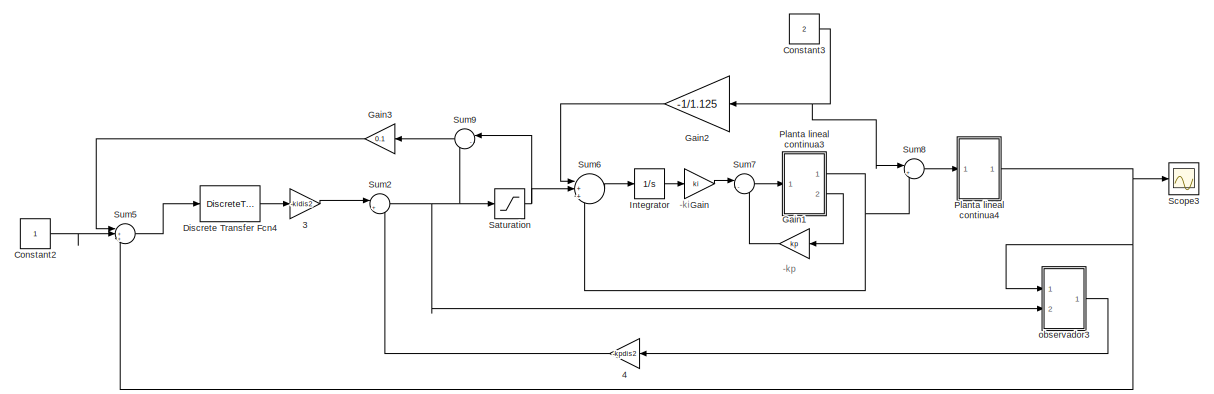
[diagram: root canvas - part 1/7, top center region]
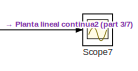
[diagram: root canvas - part 2/7, middle right region]
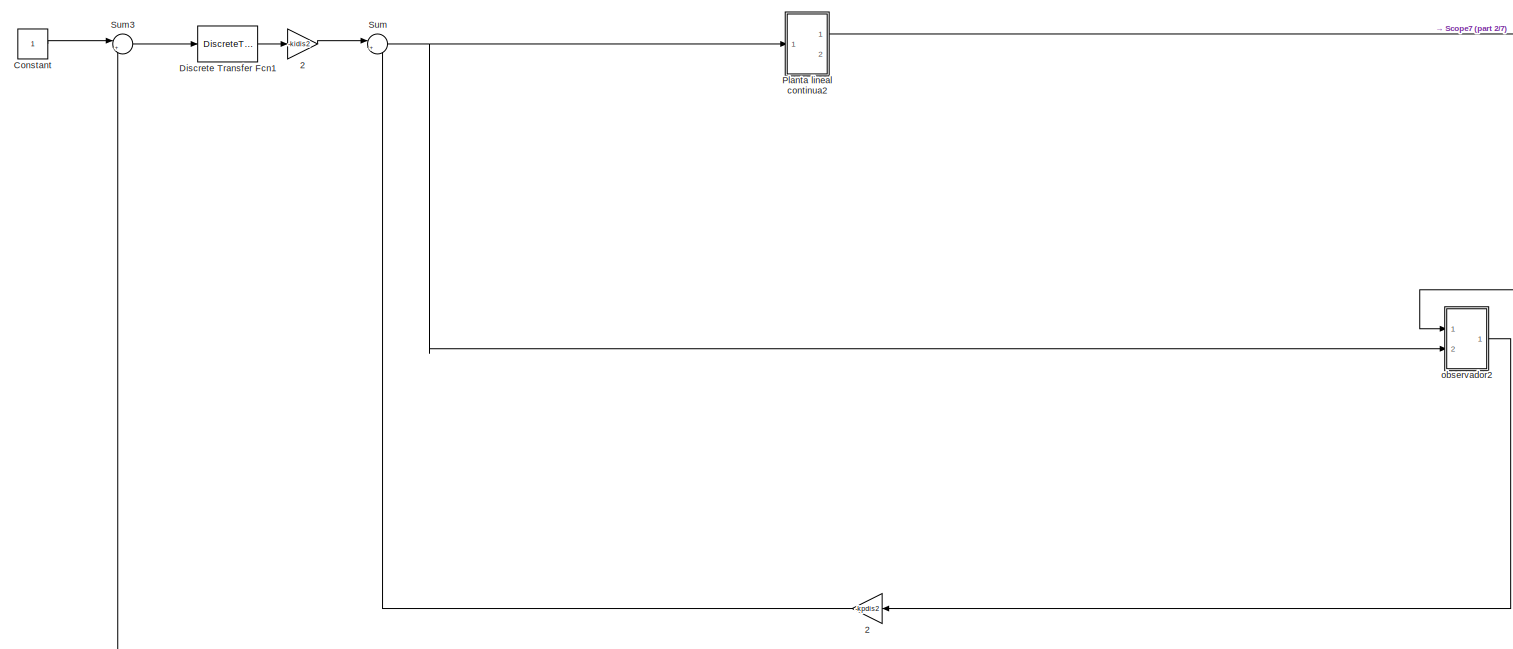
[diagram: root canvas - part 3/7, middle left region]
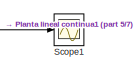
[diagram: root canvas - part 4/7, bottom right region]
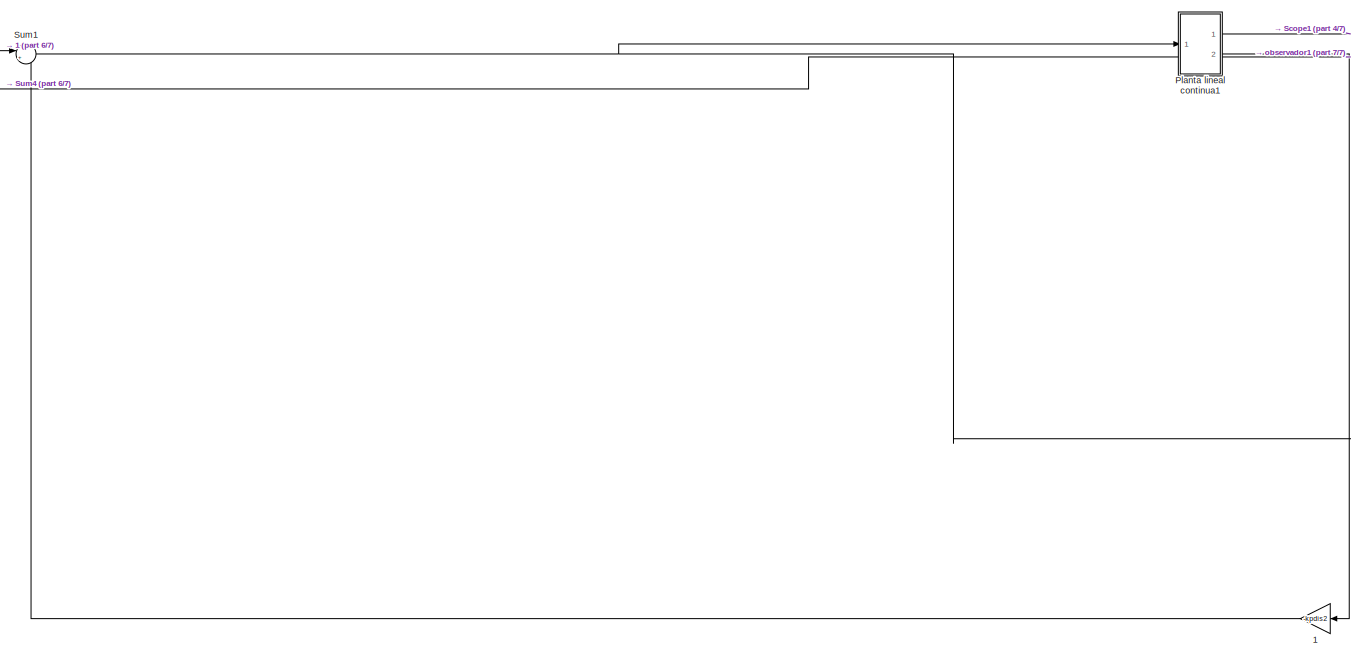
[diagram: root canvas - part 5/7, bottom center region]
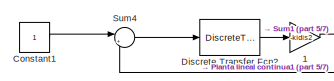
[diagram: root canvas - part 6/7, bottom left region]
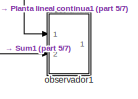
[diagram: root canvas - part 7/7, bottom right region]
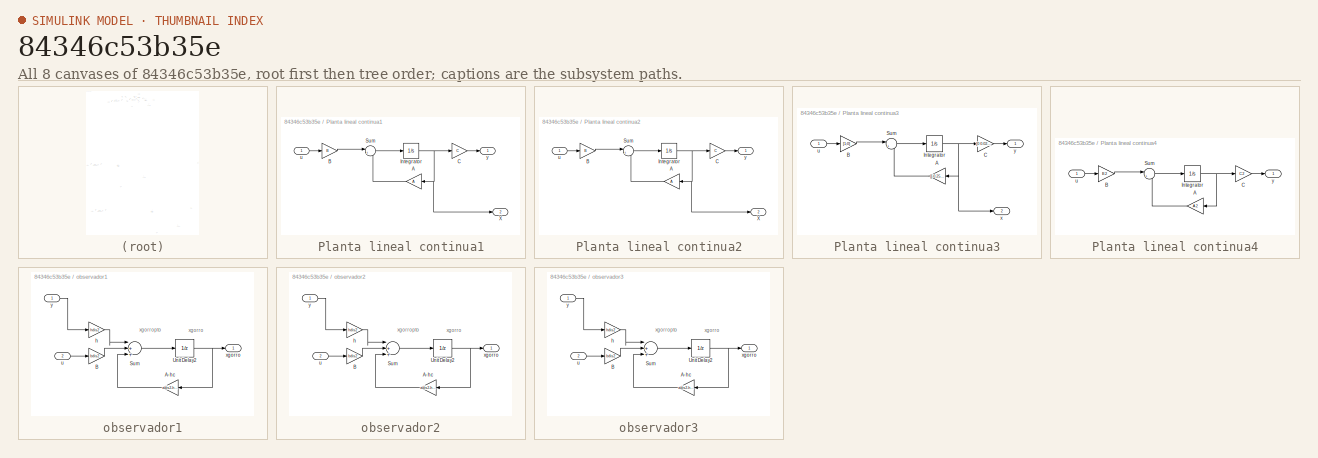
[diagram: thumbnail index - all 8 canvases of the model, root first then tree order]
MODEL slx_84346c53b35e
KIND model
CONFIG AbsTol = auto
CONFIG EnableMultiTasking = off
CONFIG FixedStep = auto
CONFIG MaxStep = auto
CONFIG MinStep = auto
CONFIG RelTol = 1e-3
CONFIG SampleTimeConstraint = Unconstrained
CONFIG Solver = VariableStepAuto
CONFIG SolverName = VariableStepAuto
CONFIG StartTime = 0.0
CONFIG StopTime = 600
BLOCK [Gain]  1
  Gain = -kidis2
  Multiplication = Matrix(K*u) (u vector)
  OutDataTypeStr = Inherit: Inherit via internal rule
  ParamDataTypeStr = Inherit: Inherit via internal rule
  SampleTime = tm2
  SaturateOnIntegerOverflow = off
BLOCK [Gain]  2
  Gain = -kidis2
  Multiplication = Matrix(K*u) (u vector)
  OutDataTypeStr = Inherit: Inherit via internal rule
  ParamDataTypeStr = Inherit: Inherit via internal rule
  SampleTime = tm2
  SaturateOnIntegerOverflow = off
BLOCK [Gain]  3
  Gain = -kidis2
  Multiplication = Matrix(K*u) (u vector)
  OutDataTypeStr = Inherit: Inherit via internal rule
  ParamDataTypeStr = Inherit: Inherit via internal rule
  SampleTime = tm2
  SaturateOnIntegerOverflow = off
BLOCK [Gain]  4
  Gain = -kpdis2
  Multiplication = Matrix(K*u) (u vector)
  OutDataTypeStr = Inherit: Inherit via internal rule
  ParamDataTypeStr = Inherit: Inherit via internal rule
  SampleTime = tm2
  SaturateOnIntegerOverflow = off
BLOCK [Constant] Constant
BLOCK [Constant] Constant1
BLOCK [Constant] Constant2
BLOCK [Constant] Constant3
  Value = 2
BLOCK [DiscreteTransferFcn] Discrete Transfer Fcn1
  Denominator = [1 -1]
  InputPortMap = u0
  Numerator = [1 0]
  Ports = [1, 1]
  SampleTime = tm2
  a0EqualsOne = on
BLOCK [DiscreteTransferFcn] Discrete Transfer Fcn2
  Denominator = [1 -1]
  InputPortMap = u0
  Numerator = [1 0]
  Ports = [1, 1]
  SampleTime = tm2
  a0EqualsOne = on
BLOCK [DiscreteTransferFcn] Discrete Transfer Fcn4
  Denominator = [1 -1]
  InputPortMap = u0
  Numerator = [1 0]
  Ports = [1, 1]
  SampleTime = tm2
  a0EqualsOne = on
BLOCK [Gain] Gain
  Gain = ki
  Multiplication = Matrix(K*u) (u vector)
  OutDataTypeStr = Inherit: Inherit via internal rule
  ParamDataTypeStr = Inherit: Inherit via internal rule
  SaturateOnIntegerOverflow = off
BLOCK [Gain] Gain1
  Gain = kp
  Multiplication = Matrix(K*u) (u vector)
  OutDataTypeStr = Inherit: Inherit via internal rule
  ParamDataTypeStr = Inherit: Inherit via internal rule
  SaturateOnIntegerOverflow = off
BLOCK [Gain] Gain2
  Gain = -1/1.125
  OutDataTypeStr = Inherit: Inherit via internal rule
  ParamDataTypeStr = Inherit: Inherit via internal rule
  SaturateOnIntegerOverflow = off
BLOCK [Gain] Gain3
  Gain = 0.1
  Multiplication = Matrix(K*u) (u vector)
  OutDataTypeStr = Inherit: Inherit via internal rule
  ParamDataTypeStr = Inherit: Inherit via internal rule
  SaturateOnIntegerOverflow = off
BLOCK [Integrator] Integrator
  Ports = [1, 1]
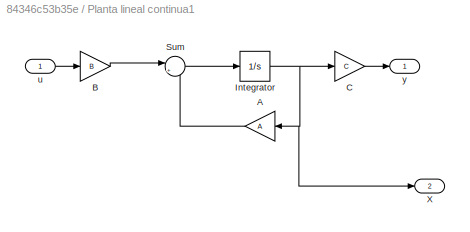
BLOCK [SubSystem] Planta lineal continua1
  Ports = [1, 2]
  RequestExecContextInheritance = off
BLOCK [Gain] Planta lineal continua1/A
  Gain = A
  Multiplication = Matrix(K*u) (u vector)
  OutDataTypeStr = Inherit: Inherit via internal rule
  ParamDataTypeStr = Inherit: Inherit via internal rule
  SaturateOnIntegerOverflow = off
BLOCK [Gain] Planta lineal continua1/B
  Gain = B
  Multiplication = Matrix(K*u) (u vector)
  OutDataTypeStr = Inherit: Inherit via internal rule
  ParamDataTypeStr = Inherit: Inherit via internal rule
  SaturateOnIntegerOverflow = off
BLOCK [Gain] Planta lineal continua1/C
  Gain = C
  Multiplication = Matrix(K*u) (u vector)
  OutDataTypeStr = Inherit: Inherit via internal rule
  ParamDataTypeStr = Inherit: Inherit via internal rule
  SaturateOnIntegerOverflow = off
BLOCK [Integrator] Planta lineal continua1/Integrator
  Ports = [1, 1]
BLOCK [Sum] Planta lineal continua1/Sum
  IconShape = round
  InputSameDT = off
  Inputs = |++
  OutDataTypeStr = Inherit: Inherit via internal rule
  Ports = [2, 1]
  SaturateOnIntegerOverflow = off
BLOCK [Outport] Planta lineal continua1/X 
  IconDisplay = Port number
  Port = 2
BLOCK [Inport] Planta lineal continua1/u
  IconDisplay = Port number
BLOCK [Outport] Planta lineal continua1/y
  IconDisplay = Port number
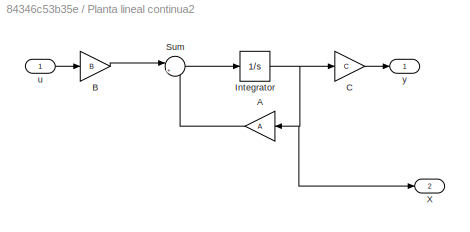
BLOCK [SubSystem] Planta lineal continua2
  Ports = [1, 2]
  RequestExecContextInheritance = off
BLOCK [Gain] Planta lineal continua2/A
  Gain = A
  Multiplication = Matrix(K*u) (u vector)
  OutDataTypeStr = Inherit: Inherit via internal rule
  ParamDataTypeStr = Inherit: Inherit via internal rule
  SaturateOnIntegerOverflow = off
BLOCK [Gain] Planta lineal continua2/B
  Gain = B
  Multiplication = Matrix(K*u) (u vector)
  OutDataTypeStr = Inherit: Inherit via internal rule
  ParamDataTypeStr = Inherit: Inherit via internal rule
  SaturateOnIntegerOverflow = off
BLOCK [Gain] Planta lineal continua2/C
  Gain = C
  Multiplication = Matrix(K*u) (u vector)
  OutDataTypeStr = Inherit: Inherit via internal rule
  ParamDataTypeStr = Inherit: Inherit via internal rule
  SaturateOnIntegerOverflow = off
BLOCK [Integrator] Planta lineal continua2/Integrator
  Ports = [1, 1]
BLOCK [Sum] Planta lineal continua2/Sum
  IconShape = round
  InputSameDT = off
  Inputs = |++
  OutDataTypeStr = Inherit: Inherit via internal rule
  Ports = [2, 1]
  SaturateOnIntegerOverflow = off
BLOCK [Outport] Planta lineal continua2/X 
  IconDisplay = Port number
  Port = 2
BLOCK [Inport] Planta lineal continua2/u
  IconDisplay = Port number
BLOCK [Outport] Planta lineal continua2/y
  IconDisplay = Port number
BLOCK [SubSystem] Planta lineal continua3
  Ports = [1, 2]
  RequestExecContextInheritance = off
BLOCK [Gain] Planta lineal continua3/A
  Gain = [[-0.25,-0.025];[1 0]]
  Multiplication = Matrix(K*u) (u vector)
  OutDataTypeStr = Inherit: Inherit via internal rule
  ParamDataTypeStr = Inherit: Inherit via internal rule
  SaturateOnIntegerOverflow = off
BLOCK [Gain] Planta lineal continua3/B
  Gain = [1;0]
  Multiplication = Matrix(K*u) (u vector)
  OutDataTypeStr = Inherit: Inherit via internal rule
  ParamDataTypeStr = Inherit: Inherit via internal rule
  SaturateOnIntegerOverflow = off
BLOCK [Gain] Planta lineal continua3/C
  Gain = [0 0.025]
  Multiplication = Matrix(K*u) (u vector)
  OutDataTypeStr = Inherit: Inherit via internal rule
  ParamDataTypeStr = Inherit: Inherit via internal rule
  SaturateOnIntegerOverflow = off
BLOCK [Integrator] Planta lineal continua3/Integrator
  Ports = [1, 1]
BLOCK [Sum] Planta lineal continua3/Sum
  IconShape = round
  InputSameDT = off
  Inputs = |++
  OutDataTypeStr = Inherit: Inherit via internal rule
  Ports = [2, 1]
  SaturateOnIntegerOverflow = off
BLOCK [Inport] Planta lineal continua3/u
  IconDisplay = Port number
BLOCK [Outport] Planta lineal continua3/x
  IconDisplay = Port number
  Port = 2
BLOCK [Outport] Planta lineal continua3/y
  IconDisplay = Port number
BLOCK [SubSystem] Planta lineal continua4
  Ports = [1, 1]
  RequestExecContextInheritance = off
BLOCK [Gain] Planta lineal continua4/A
  Gain = A2
  Multiplication = Matrix(K*u) (u vector)
  OutDataTypeStr = Inherit: Inherit via internal rule
  ParamDataTypeStr = Inherit: Inherit via internal rule
  SaturateOnIntegerOverflow = off
BLOCK [Gain] Planta lineal continua4/B
  Gain = B2
  Multiplication = Matrix(K*u) (u vector)
  OutDataTypeStr = Inherit: Inherit via internal rule
  ParamDataTypeStr = Inherit: Inherit via internal rule
  SaturateOnIntegerOverflow = off
BLOCK [Gain] Planta lineal continua4/C
  Gain = C2
  Multiplication = Matrix(K*u) (u vector)
  OutDataTypeStr = Inherit: Inherit via internal rule
  ParamDataTypeStr = Inherit: Inherit via internal rule
  SaturateOnIntegerOverflow = off
BLOCK [Integrator] Planta lineal continua4/Integrator
  Ports = [1, 1]
BLOCK [Sum] Planta lineal continua4/Sum
  IconShape = round
  InputSameDT = off
  Inputs = |++
  OutDataTypeStr = Inherit: Inherit via internal rule
  Ports = [2, 1]
  SaturateOnIntegerOverflow = off
BLOCK [Inport] Planta lineal continua4/u
  IconDisplay = Port number
BLOCK [Outport] Planta lineal continua4/y
  IconDisplay = Port number
BLOCK [Saturate] Saturation
  InputPortMap = u0
  LowerLimit = -5
  Ports = [1, 1]
  UpperLimit = 5
  ZeroCross = off
BLOCK [Scope] Scope1
  Floating = off
  NumInputPorts = 1
  Ports = [1]
  ScopeSpecificationString = Simulink.scopes.TimeScopeBlockCfg('CurrentConfiguration', extmgr.ConfigurationSet(extmgr.Configuration('Core','General UI',true),extmgr.Configuration('Core','Source UI',true),extmgr.Configuration('Sources','WiredSimulink',true,'DataLoggingVariableName','ScopeData1'),extmgr.Configuration('Visuals','Time Domain',true,'SerializedDisplays',{struct('MinYLimReal','-0.13407','MaxYLimReal','1.20667','YLab...<+1814ch>
BLOCK [Scope] Scope3
  Floating = off
  NumInputPorts = 1
  Ports = [1]
  ScopeSpecificationString = Simulink.scopes.TimeScopeBlockCfg('CurrentConfiguration', extmgr.ConfigurationSet(extmgr.Configuration('Core','General UI',true),extmgr.Configuration('Core','Source UI',true),extmgr.Configuration('Sources','WiredSimulink',true,'DataLoggingVariableName','ScopeData3'),extmgr.Configuration('Visuals','Time Domain',true,'SerializedDisplays',{struct('MinYLimReal','-0.15604','MaxYLimReal','1.40432','YLab...<+1485ch>
BLOCK [Scope] Scope7
  Floating = off
  NumInputPorts = 1
  Ports = [1]
  ScopeSpecificationString = Simulink.scopes.TimeScopeBlockCfg('CurrentConfiguration', extmgr.ConfigurationSet(extmgr.Configuration('Core','General UI',true),extmgr.Configuration('Core','Source UI',true),extmgr.Configuration('Sources','WiredSimulink',true),extmgr.Configuration('Visuals','Time Domain',true,'SerializedDisplays',{struct('MinYLimReal','-0.1234','MaxYLimReal','1.11059','YLabelReal','','MinYLimMag','0.00000','MaxYL...<+1446ch>
BLOCK [Sum] Sum
  IconShape = round
  InputSameDT = off
  Inputs = |++
  OutDataTypeStr = Inherit: Inherit via internal rule
  Ports = [2, 1]
  SaturateOnIntegerOverflow = off
BLOCK [Sum] Sum1
  IconShape = round
  InputSameDT = off
  Inputs = |++
  OutDataTypeStr = Inherit: Inherit via internal rule
  Ports = [2, 1]
  SaturateOnIntegerOverflow = off
BLOCK [Sum] Sum2
  IconShape = round
  InputSameDT = off
  Inputs = |++
  OutDataTypeStr = Inherit: Inherit via internal rule
  Ports = [2, 1]
  SaturateOnIntegerOverflow = off
BLOCK [Sum] Sum3
  IconShape = round
  InputSameDT = off
  Inputs = |+-
  OutDataTypeStr = Inherit: Inherit via internal rule
  Ports = [2, 1]
  SaturateOnIntegerOverflow = off
BLOCK [Sum] Sum4
  IconShape = round
  InputSameDT = off
  Inputs = |+-
  OutDataTypeStr = Inherit: Inherit via internal rule
  Ports = [2, 1]
  SaturateOnIntegerOverflow = off
BLOCK [Sum] Sum5
  IconShape = round
  InputSameDT = off
  Inputs = |++-
  OutDataTypeStr = Inherit: Inherit via internal rule
  Ports = [3, 1]
  SaturateOnIntegerOverflow = off
BLOCK [Sum] Sum6
  IconShape = round
  InputSameDT = off
  Inputs = |++-
  OutDataTypeStr = Inherit: Inherit via internal rule
  Ports = [3, 1]
  SaturateOnIntegerOverflow = off
BLOCK [Sum] Sum7
  IconShape = round
  InputSameDT = off
  Inputs = |--
  OutDataTypeStr = Inherit: Inherit via internal rule
  Ports = [2, 1]
  SaturateOnIntegerOverflow = off
BLOCK [Sum] Sum8
  IconShape = round
  InputSameDT = off
  Inputs = |++
  OutDataTypeStr = Inherit: Inherit via internal rule
  Ports = [2, 1]
  SaturateOnIntegerOverflow = off
BLOCK [Sum] Sum9
  IconShape = round
  InputSameDT = off
  Inputs = |-+
  OutDataTypeStr = Inherit: Inherit via internal rule
  Ports = [2, 1]
  SaturateOnIntegerOverflow = off
BLOCK [SubSystem] observador1
  Ports = [2, 1]
  RequestExecContextInheritance = off
BLOCK [Gain] observador1/A-hc
  Gain = adis2-hdis2*cdis2
  Multiplication = Matrix(K*u) (u vector)
  OutDataTypeStr = Inherit: Inherit via internal rule
  ParamDataTypeStr = Inherit: Inherit via internal rule
  SaturateOnIntegerOverflow = off
BLOCK [Gain] observador1/B
  Gain = bdis2
  Multiplication = Matrix(K*u) (u vector)
  OutDataTypeStr = Inherit: Inherit via internal rule
  ParamDataTypeStr = Inherit: Inherit via internal rule
  SaturateOnIntegerOverflow = off
BLOCK [Sum] observador1/Sum
  InputSameDT = off
  Inputs = |+++
  OutDataTypeStr = Inherit: Inherit via internal rule
  Ports = [3, 1]
  SaturateOnIntegerOverflow = off
BLOCK [UnitDelay] observador1/Unit Delay2
  HasFrameUpgradeWarning = on
  SampleTime = tm2
BLOCK [Gain] observador1/h
  Gain = hdis2
  Multiplication = Matrix(K*u) (u vector)
  OutDataTypeStr = Inherit: Inherit via internal rule
  ParamDataTypeStr = Inherit: Inherit via internal rule
  SaturateOnIntegerOverflow = off
BLOCK [Inport] observador1/u
  IconDisplay = Port number
  Port = 2
BLOCK [Outport] observador1/xgorro
  IconDisplay = Port number
BLOCK [Inport] observador1/y
  IconDisplay = Port number
BLOCK [SubSystem] observador2
  Ports = [2, 1]
  RequestExecContextInheritance = off
BLOCK [Gain] observador2/A-hc
  Gain = adis2-hdis2*cdis2
  Multiplication = Matrix(K*u) (u vector)
  OutDataTypeStr = Inherit: Inherit via internal rule
  ParamDataTypeStr = Inherit: Inherit via internal rule
  SaturateOnIntegerOverflow = off
BLOCK [Gain] observador2/B
  Gain = bdis2
  Multiplication = Matrix(K*u) (u vector)
  OutDataTypeStr = Inherit: Inherit via internal rule
  ParamDataTypeStr = Inherit: Inherit via internal rule
  SaturateOnIntegerOverflow = off
BLOCK [Sum] observador2/Sum
  InputSameDT = off
  Inputs = |+++
  OutDataTypeStr = Inherit: Inherit via internal rule
  Ports = [3, 1]
  SaturateOnIntegerOverflow = off
BLOCK [UnitDelay] observador2/Unit Delay2
  HasFrameUpgradeWarning = on
  SampleTime = tm2
BLOCK [Gain] observador2/h
  Gain = hdis2
  Multiplication = Matrix(K*u) (u vector)
  OutDataTypeStr = Inherit: Inherit via internal rule
  ParamDataTypeStr = Inherit: Inherit via internal rule
  SaturateOnIntegerOverflow = off
BLOCK [Inport] observador2/u
  IconDisplay = Port number
  Port = 2
BLOCK [Outport] observador2/xgorro
  IconDisplay = Port number
BLOCK [Inport] observador2/y
  IconDisplay = Port number
BLOCK [SubSystem] observador3
  Ports = [2, 1]
  RequestExecContextInheritance = off
BLOCK [Gain] observador3/A-hc
  Gain = adis2-hdis2*cdis2
  Multiplication = Matrix(K*u) (u vector)
  OutDataTypeStr = Inherit: Inherit via internal rule
  ParamDataTypeStr = Inherit: Inherit via internal rule
  SaturateOnIntegerOverflow = off
BLOCK [Gain] observador3/B
  Gain = bdis2
  Multiplication = Matrix(K*u) (u vector)
  OutDataTypeStr = Inherit: Inherit via internal rule
  ParamDataTypeStr = Inherit: Inherit via internal rule
  SaturateOnIntegerOverflow = off
BLOCK [Sum] observador3/Sum
  InputSameDT = off
  Inputs = |+++
  OutDataTypeStr = Inherit: Inherit via internal rule
  Ports = [3, 1]
  SaturateOnIntegerOverflow = off
BLOCK [UnitDelay] observador3/Unit Delay2
  HasFrameUpgradeWarning = on
  SampleTime = tm2
BLOCK [Gain] observador3/h
  Gain = hdis2
  Multiplication = Matrix(K*u) (u vector)
  OutDataTypeStr = Inherit: Inherit via internal rule
  ParamDataTypeStr = Inherit: Inherit via internal rule
  SaturateOnIntegerOverflow = off
BLOCK [Inport] observador3/u
  IconDisplay = Port number
  Port = 2
BLOCK [Outport] observador3/xgorro
  IconDisplay = Port number
BLOCK [Inport] observador3/y
  IconDisplay = Port number
ANNOTATION (root): -ki
ANNOTATION (root): -kp
ANNOTATION observador1: xgorro
ANNOTATION observador1: xgorropto
ANNOTATION observador2: xgorro
ANNOTATION observador2: xgorropto
ANNOTATION observador3: xgorro
ANNOTATION observador3: xgorropto
NET  1:1 -> Sum1:1, Sum1:2
NET  2:1 -> Sum:1, Sum:2
LINE  3:1 -> Sum2:1
LINE  4:1 -> Sum2:2
LINE Constant1:1 -> Sum4:1
LINE Constant2:1 -> Sum5:2
NET Constant3:1 -> Gain2:1, Sum8:1
LINE Constant:1 -> Sum3:1
LINE Discrete Transfer Fcn1:1 ->  2:1
LINE Discrete Transfer Fcn2:1 ->  1:1
LINE Discrete Transfer Fcn4:1 ->  3:1
LINE Gain1:1 -> Sum7:2
LINE Gain2:1 -> Sum6:1
LINE Gain3:1 -> Sum5:1
LINE Gain:1 -> Sum7:1
LINE Integrator:1 -> Gain:1
LINE Planta lineal continua1/A:1 -> Planta lineal continua1/Sum:2
LINE Planta lineal continua1/B:1 -> Planta lineal continua1/Sum:1
LINE Planta lineal continua1/C:1 -> Planta lineal continua1/y:1
NET Planta lineal continua1/Integrator:1 -> Planta lineal continua1/A:1, Planta lineal continua1/C:1, Planta lineal continua1/X :1
LINE Planta lineal continua1/Sum:1 -> Planta lineal continua1/Integrator:1
LINE Planta lineal continua1/u:1 -> Planta lineal continua1/B:1
NET Planta lineal continua1:1 -> Scope1:1, Sum4:2, observador1:1
LINE Planta lineal continua1:2 ->  1:1
LINE Planta lineal continua2/A:1 -> Planta lineal continua2/Sum:2
LINE Planta lineal continua2/B:1 -> Planta lineal continua2/Sum:1
LINE Planta lineal continua2/C:1 -> Planta lineal continua2/y:1
NET Planta lineal continua2/Integrator:1 -> Planta lineal continua2/A:1, Planta lineal continua2/C:1, Planta lineal continua2/X :1
LINE Planta lineal continua2/Sum:1 -> Planta lineal continua2/Integrator:1
LINE Planta lineal continua2/u:1 -> Planta lineal continua2/B:1
NET Planta lineal continua2:1 -> Scope7:1, Sum3:2, observador2:1
LINE Planta lineal continua3/A:1 -> Planta lineal continua3/Sum:2
LINE Planta lineal continua3/B:1 -> Planta lineal continua3/Sum:1
LINE Planta lineal continua3/C:1 -> Planta lineal continua3/y:1
NET Planta lineal continua3/Integrator:1 -> Planta lineal continua3/A:1, Planta lineal continua3/C:1, Planta lineal continua3/x:1
LINE Planta lineal continua3/Sum:1 -> Planta lineal continua3/Integrator:1
LINE Planta lineal continua3/u:1 -> Planta lineal continua3/B:1
NET Planta lineal continua3:1 -> Sum6:3, Sum8:2
LINE Planta lineal continua3:2 -> Gain1:1
LINE Planta lineal continua4/A:1 -> Planta lineal continua4/Sum:2
LINE Planta lineal continua4/B:1 -> Planta lineal continua4/Sum:1
LINE Planta lineal continua4/C:1 -> Planta lineal continua4/y:1
NET Planta lineal continua4/Integrator:1 -> Planta lineal continua4/A:1, Planta lineal continua4/C:1
LINE Planta lineal continua4/Sum:1 -> Planta lineal continua4/Integrator:1
LINE Planta lineal continua4/u:1 -> Planta lineal continua4/B:1
NET Planta lineal continua4:1 -> Scope3:1, Sum5:3, observador3:1
NET Saturation:1 -> Sum6:2, Sum9:1
NET Sum1:1 -> Planta lineal continua1:1, observador1:2
NET Sum2:1 -> Saturation:1, Sum9:2, observador3:2
LINE Sum3:1 -> Discrete Transfer Fcn1:1
LINE Sum4:1 -> Discrete Transfer Fcn2:1
LINE Sum5:1 -> Discrete Transfer Fcn4:1
LINE Sum6:1 -> Integrator:1
LINE Sum7:1 -> Planta lineal continua3:1
LINE Sum8:1 -> Planta lineal continua4:1
LINE Sum9:1 -> Gain3:1
NET Sum:1 -> Planta lineal continua2:1, observador2:2
LINE observador1/A-hc:1 -> observador1/Sum:3
LINE observador1/B:1 -> observador1/Sum:2
LINE observador1/Sum:1 -> observador1/Unit Delay2:1
NET observador1/Unit Delay2:1 -> observador1/A-hc:1, observador1/xgorro:1
LINE observador1/h:1 -> observador1/Sum:1
LINE observador1/u:1 -> observador1/B:1
LINE observador1/y:1 -> observador1/h:1
LINE observador2/A-hc:1 -> observador2/Sum:3
LINE observador2/B:1 -> observador2/Sum:2
LINE observador2/Sum:1 -> observador2/Unit Delay2:1
NET observador2/Unit Delay2:1 -> observador2/A-hc:1, observador2/xgorro:1
LINE observador2/h:1 -> observador2/Sum:1
LINE observador2/u:1 -> observador2/B:1
LINE observador2/y:1 -> observador2/h:1
LINE observador2:1 ->  2:1
LINE observador3/A-hc:1 -> observador3/Sum:3
LINE observador3/B:1 -> observador3/Sum:2
LINE observador3/Sum:1 -> observador3/Unit Delay2:1
NET observador3/Unit Delay2:1 -> observador3/A-hc:1, observador3/xgorro:1
LINE observador3/h:1 -> observador3/Sum:1
LINE observador3/u:1 -> observador3/B:1
LINE observador3/y:1 -> observador3/h:1
LINE observador3:1 ->  4:1
note: NET lines group one-source signal fan-out (src -> all destinations, sorted); 1:1 wires keep LINE
